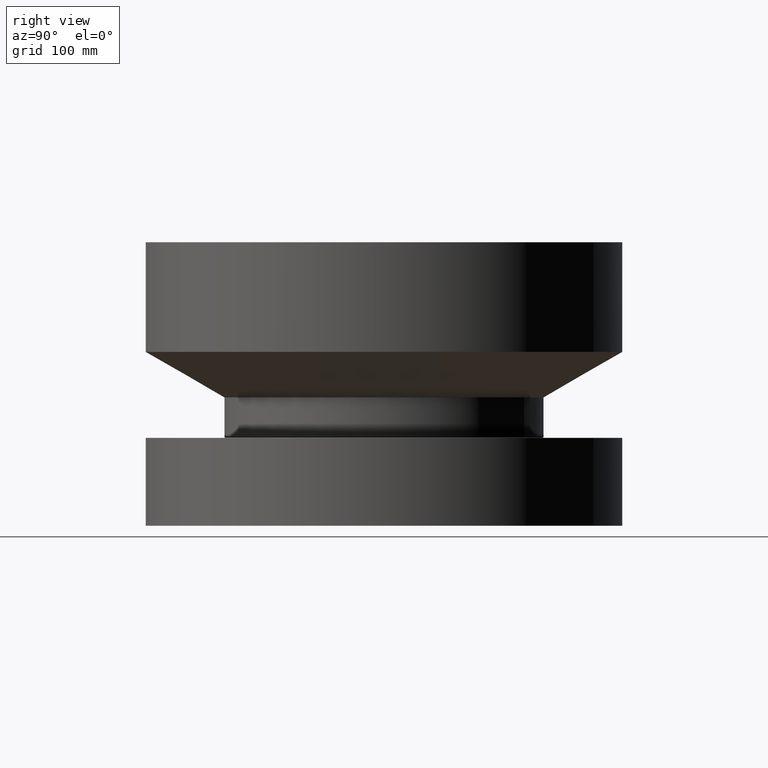
[diagram: clean part render]
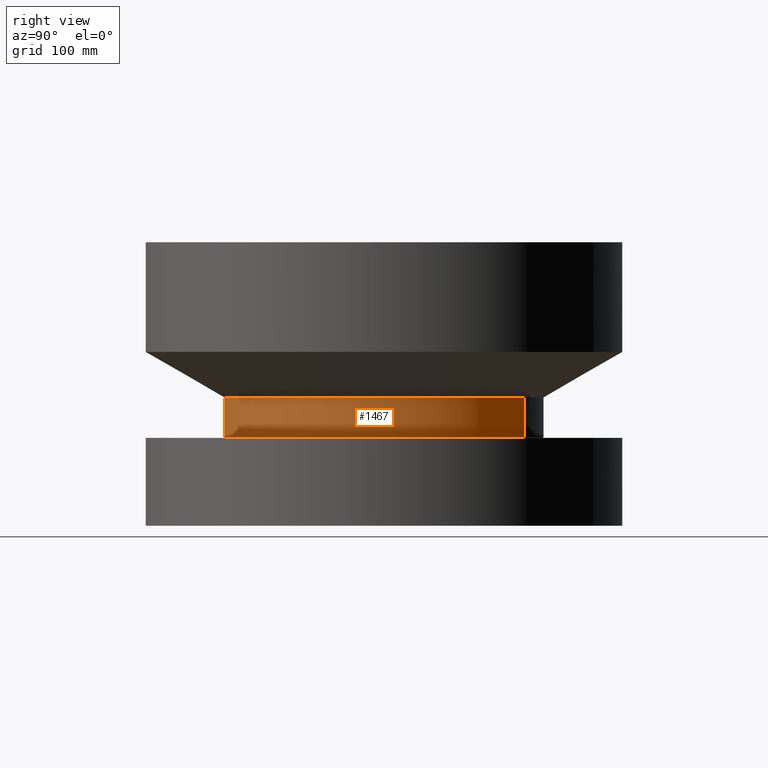
[diagram: same view with one face highlighted and labeled with its STEP entity id]
A machine part, right view. The second image highlights one B-rep face of the part: STEP entity #1467.
In plain terms, the highlighted cylindrical surface (partial cylindrical patch) has radius 225.425 mm, axis along (0, 0, -1).
Its self-contained STEP definition (entity closure, byte-faithful):
#1229=AXIS2_PLACEMENT_3D('Circle Axis2P3D',#1227,#1228,$) ;
#1440=AXIS2_PLACEMENT_3D('Cylinder Axis2P3D',#1437,#1438,#1439) ;
#1451=AXIS2_PLACEMENT_3D('Circle Axis2P3D',#1449,#1450,$) ;
#1224=CARTESIAN_POINT('Vertex',(4.25490165513,7.78854523681,4.92098076213)) ;
#1227=CARTESIAN_POINT('Axis2P3D Location',(0.,0.,4.92098076213)) ;
#1231=CARTESIAN_POINT('Vertex',(-4.25490165513,-7.78854523681,4.92098076213)) ;
#1437=CARTESIAN_POINT('Axis2P3D Location',(0.,0.,7.75000000003)) ;
#1442=CARTESIAN_POINT('Line Origine',(4.25490165513,7.78854523681,6.02549038108)) ;
#1446=CARTESIAN_POINT('Vertex',(4.25490165513,7.78854523681,7.13000000003)) ;
#1449=CARTESIAN_POINT('Axis2P3D Location',(0.,0.,7.13000000003)) ;
#1453=CARTESIAN_POINT('Vertex',(-4.25490165513,-7.78854523681,7.13000000003)) ;
#1456=CARTESIAN_POINT('Line Origine',(-4.25490165513,-7.78854523681,6.02549038108)) ;
#1228=DIRECTION('Axis2P3D Direction',(-0.,0.,0.0393700787402)) ;
#1438=DIRECTION('Axis2P3D Direction',(0.,0.,-0.0393700787402)) ;
#1439=DIRECTION('Axis2P3D XDirection',(-0.0188750212049,-0.0345504945626,0.)) ;
#1443=DIRECTION('Vector Direction',(0.,0.,-0.0393700787402)) ;
#1450=DIRECTION('Axis2P3D Direction',(0.,0.,-0.0393700787402)) ;
#1457=DIRECTION('Vector Direction',(0.,0.,-0.0393700787402)) ;
#1444=VECTOR('Line Direction',#1443,0.0393700787402) ;
#1458=VECTOR('Line Direction',#1457,0.0393700787402) ;
#1462=ORIENTED_EDGE('',*,*,#1233,.F.) ;
#1463=ORIENTED_EDGE('',*,*,#1448,.T.) ;
#1464=ORIENTED_EDGE('',*,*,#1455,.T.) ;
#1465=ORIENTED_EDGE('',*,*,#1460,.F.) ;
#1467=ADVANCED_FACE('PartBody',(#1466),#1441,.T.) ;
#1230=CIRCLE('generated circle',#1229,8.87500000004) ;
#1452=CIRCLE('generated circle',#1451,8.87500000004) ;
#1441=CYLINDRICAL_SURFACE('generated cylinder',#1440,8.87500000004) ;
#1233=EDGE_CURVE('',#1225,#1232,#1230,.F.) ;
#1448=EDGE_CURVE('',#1225,#1447,#1445,.F.) ;
#1455=EDGE_CURVE('',#1447,#1454,#1452,.T.) ;
#1460=EDGE_CURVE('',#1232,#1454,#1459,.F.) ;
#1461=EDGE_LOOP('',(#1462,#1463,#1464,#1465)) ;
#1466=FACE_OUTER_BOUND('',#1461,.T.) ;
#1445=LINE('Line',#1442,#1444) ;
#1459=LINE('Line',#1456,#1458) ;
#1225=VERTEX_POINT('',#1224) ;
#1232=VERTEX_POINT('',#1231) ;
#1447=VERTEX_POINT('',#1446) ;
#1454=VERTEX_POINT('',#1453) ;